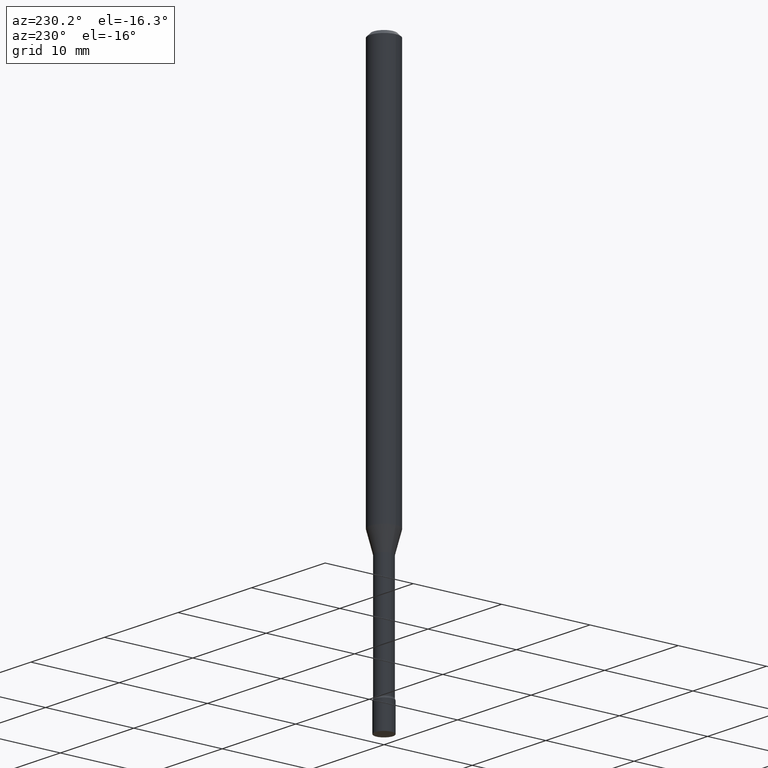
[diagram: clean part render]
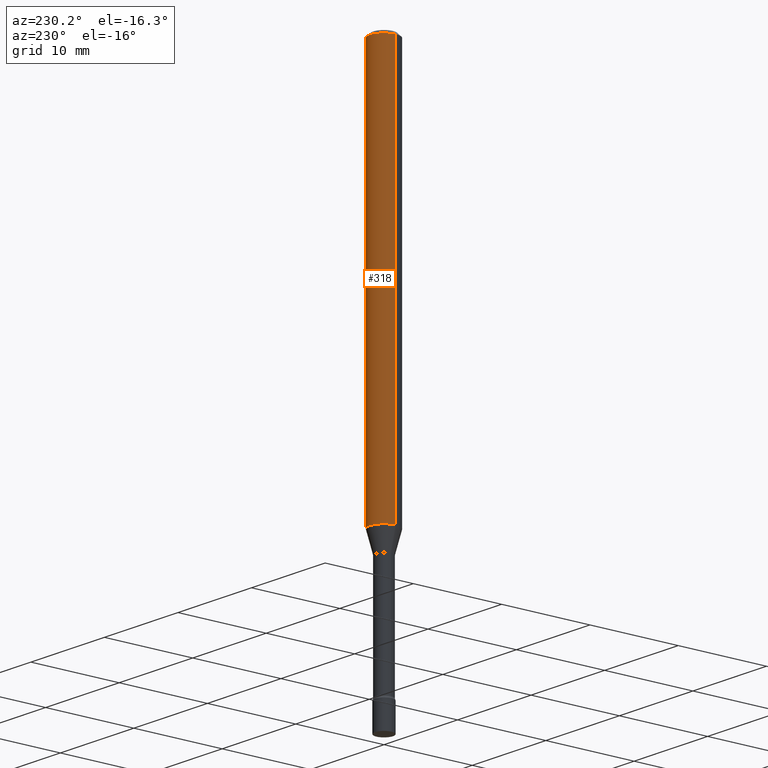
[diagram: same view with one face highlighted and labeled with its STEP entity id]
A machine part, auxiliary view. The second image highlights one B-rep face of the part: STEP entity #318.
In plain terms, the highlighted cylindrical surface (edge-blend (fillet) strip) has radius 1.5875 mm, axis along (-0, 0, 1).
Its self-contained STEP definition (entity closure, byte-faithful):
#17 = CARTESIAN_POINT ( 'NONE',  ( 0.06250000000000000000, -6.606133852422636036E-15, -1.767071934891535134 ) ) ;
#78 = ORIENTED_EDGE ( 'NONE', *, *, #263, .T. ) ;
#79 = CYLINDRICAL_SURFACE ( 'NONE', #106, 0.06250000000000000000 ) ;
#105 = DIRECTION ( 'NONE',  ( -2.445468806185136877E-29, 3.491481338843145188E-15, 1.000000000000000000 ) ) ;
#106 = AXIS2_PLACEMENT_3D ( 'NONE', #516, #470, #520 ) ;
#112 = CIRCLE ( 'NONE', #422, 0.06250000000000000000 ) ;
#119 = VERTEX_POINT ( 'NONE', #410 ) ;
#127 = CARTESIAN_POINT ( 'NONE',  ( 0.06250000000000000000, -4.364351673553916694E-16, 3.047610484872459871E-30 ) ) ;
#144 = CIRCLE ( 'NONE', #355, 0.06250000000000000000 ) ;
#148 = DIRECTION ( 'NONE',  ( -2.445468806185136597E-29, 3.491481338843145583E-15, 1.000000000000000000 ) ) ;
#154 = LINE ( 'NONE', #127, #365 ) ;
#180 = CARTESIAN_POINT ( 'NONE',  ( 3.668203209277712094E-31, -5.237222008264728876E-17, -0.01500000000000003067 ) ) ;
#184 = LINE ( 'NONE', #495, #187 ) ;
#185 = DIRECTION ( 'NONE',  ( 1.000000000000000000, -6.982962677686266711E-15, 0.000000000000000000 ) ) ;
#186 = EDGE_CURVE ( 'NONE', #305, #119, #112, .T. ) ;
#187 = VECTOR ( 'NONE', #105, 39.37007874015748143 ) ;
#188 = DIRECTION ( 'NONE',  ( -2.445468806185136597E-29, 3.491481338843145583E-15, 1.000000000000000000 ) ) ;
#192 = VERTEX_POINT ( 'NONE', #17 ) ;
#195 = ORIENTED_EDGE ( 'NONE', *, *, #186, .F. ) ;
#200 = CARTESIAN_POINT ( 'NONE',  ( 0.06250000000000000000, -4.888073874380389458E-16, -0.01500000000000003067 ) ) ;
#216 = EDGE_CURVE ( 'NONE', #192, #273, #144, .T. ) ;
#263 = EDGE_CURVE ( 'NONE', #273, #119, #184, .T. ) ;
#264 = CARTESIAN_POINT ( 'NONE',  ( 4.321319295062462041E-29, -6.169698685067244367E-15, -1.767071934891535134 ) ) ;
#267 = ORIENTED_EDGE ( 'NONE', *, *, #216, .T. ) ;
#273 = VERTEX_POINT ( 'NONE', #497 ) ;
#305 = VERTEX_POINT ( 'NONE', #200 ) ;
#314 = ORIENTED_EDGE ( 'NONE', *, *, #436, .F. ) ;
#318 = ADVANCED_FACE ( 'NONE', ( #320 ), #79, .T. ) ;
#320 = FACE_OUTER_BOUND ( 'NONE', #358, .T. ) ;
#338 = DIRECTION ( 'NONE',  ( 1.000000000000000000, -6.982962677686262766E-15, 0.000000000000000000 ) ) ;
#355 = AXIS2_PLACEMENT_3D ( 'NONE', #264, #188, #338 ) ;
#358 = EDGE_LOOP ( 'NONE', ( #267, #78, #195, #314 ) ) ;
#365 = VECTOR ( 'NONE', #472, 39.37007874015748143 ) ;
#410 = CARTESIAN_POINT ( 'NONE',  ( -0.06250000000000000000, -2.666946242724883698E-15, -0.01500000000000003067 ) ) ;
#422 = AXIS2_PLACEMENT_3D ( 'NONE', #180, #148, #185 ) ;
#436 = EDGE_CURVE ( 'NONE', #192, #305, #154, .T. ) ;
#470 = DIRECTION ( 'NONE',  ( -2.445468806185136597E-29, 3.491481338843145583E-15, 1.000000000000000000 ) ) ;
#472 = DIRECTION ( 'NONE',  ( -2.445468806185136877E-29, 3.491481338843145188E-15, 1.000000000000000000 ) ) ;
#495 = CARTESIAN_POINT ( 'NONE',  ( -0.06250000000000000000, 4.440892098500626162E-16, -3.074334431409316114E-30 ) ) ;
#497 = CARTESIAN_POINT ( 'NONE',  ( -0.06250000000000000000, -5.725609475217180962E-15, -1.767071934891535134 ) ) ;
#516 = CARTESIAN_POINT ( 'NONE',  ( 0.000000000000000000, 0.000000000000000000, 0.000000000000000000 ) ) ;
#520 = DIRECTION ( 'NONE',  ( 1.000000000000000000, -6.982962677686266711E-15, 4.876176775795935793E-29 ) ) ;